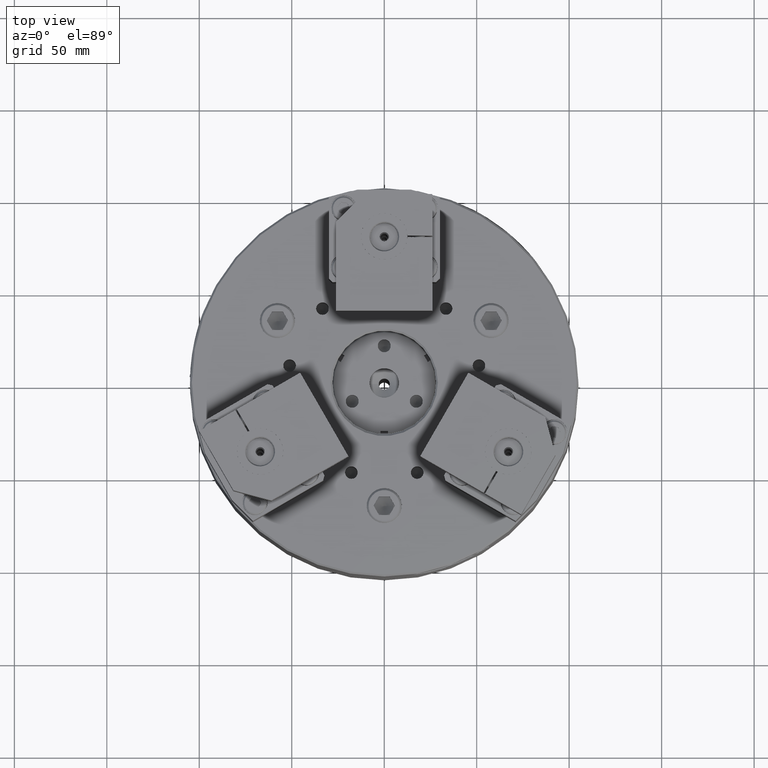
[diagram: clean part render]
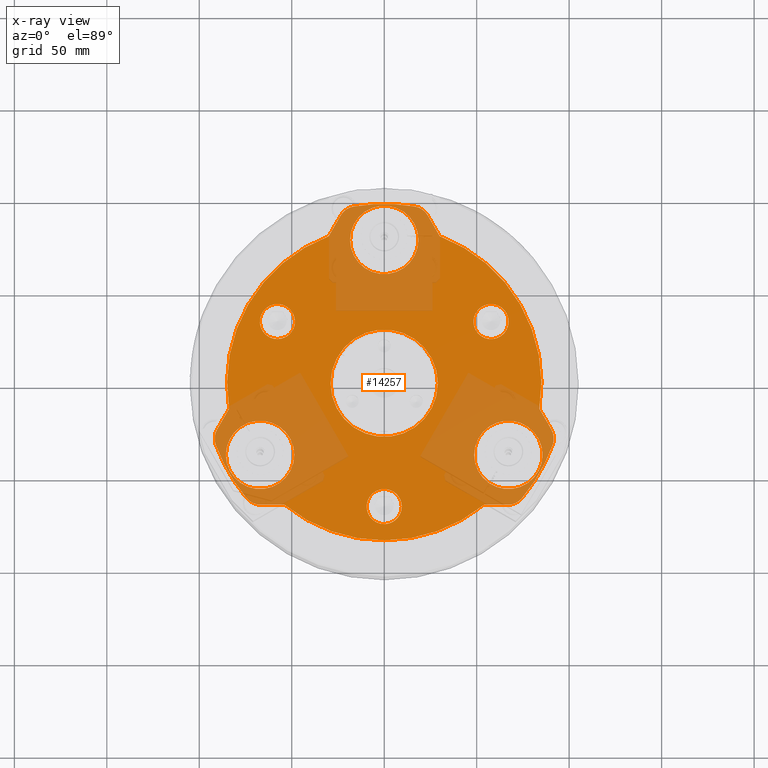
[diagram: x-ray — body ghosted, one internal face saturated and labeled with its STEP entity id]
A machine part, top view, then the same camera in x-ray: the body is ghosted and one INTERNAL B-rep face — a face not visible from any outside direction — is saturated and labeled: STEP entity #14257.
In plain terms, the highlighted planar face has unit normal (0, 0, 1).
Its self-contained STEP definition (entity closure, byte-faithful):
#113=LINE('',#22704,#953);
#116=LINE('',#22709,#956);
#123=LINE('',#22735,#963);
#126=LINE('',#22740,#966);
#133=LINE('',#22766,#973);
#136=LINE('',#22771,#976);
#953=VECTOR('',#17975,1000.);
#956=VECTOR('',#17980,1000.);
#963=VECTOR('',#18007,1000.);
#966=VECTOR('',#18012,1000.);
#973=VECTOR('',#18039,1000.);
#976=VECTOR('',#18044,1000.);
#1788=PLANE('',#15881);
#2535=CIRCLE('',#15745,9.5);
#2537=CIRCLE('',#15748,9.5);
#2539=CIRCLE('',#15751,9.5);
#2544=CIRCLE('',#15758,29.);
#2567=CIRCLE('',#15790,18.5);
#2569=CIRCLE('',#15793,18.5);
#2571=CIRCLE('',#15796,18.5);
#2598=CIRCLE('',#15848,10.);
#2600=CIRCLE('',#15851,97.);
#2602=CIRCLE('',#15854,9.99999999999999);
#2604=CIRCLE('',#15859,10.);
#2606=CIRCLE('',#15862,97.);
#2608=CIRCLE('',#15865,9.99999999999999);
#2610=CIRCLE('',#15870,10.);
#2612=CIRCLE('',#15873,97.);
#2614=CIRCLE('',#15876,9.99999999999999);
#2615=CIRCLE('',#15882,85.);
#2616=CIRCLE('',#15883,85.);
#2617=CIRCLE('',#15884,85.);
#3576=ORIENTED_EDGE('',*,*,#7085,.T.);
#3577=ORIENTED_EDGE('',*,*,#7052,.F.);
#3578=ORIENTED_EDGE('',*,*,#7039,.F.);
#3579=ORIENTED_EDGE('',*,*,#7043,.F.);
#3580=ORIENTED_EDGE('',*,*,#7046,.F.);
#3581=ORIENTED_EDGE('',*,*,#7049,.F.);
#3582=ORIENTED_EDGE('',*,*,#7086,.T.);
#3583=ORIENTED_EDGE('',*,*,#7068,.F.);
#3584=ORIENTED_EDGE('',*,*,#7055,.F.);
#3585=ORIENTED_EDGE('',*,*,#7059,.F.);
#3586=ORIENTED_EDGE('',*,*,#7062,.F.);
#3587=ORIENTED_EDGE('',*,*,#7065,.F.);
#3588=ORIENTED_EDGE('',*,*,#7087,.T.);
#3589=ORIENTED_EDGE('',*,*,#7084,.F.);
#3590=ORIENTED_EDGE('',*,*,#7071,.F.);
#3591=ORIENTED_EDGE('',*,*,#7075,.F.);
#3592=ORIENTED_EDGE('',*,*,#7078,.F.);
#3593=ORIENTED_EDGE('',*,*,#7081,.F.);
#3594=ORIENTED_EDGE('',*,*,#6984,.T.);
#3595=ORIENTED_EDGE('',*,*,#7007,.T.);
#3596=ORIENTED_EDGE('',*,*,#7009,.T.);
#3597=ORIENTED_EDGE('',*,*,#7011,.T.);
#3598=ORIENTED_EDGE('',*,*,#6979,.T.);
#3599=ORIENTED_EDGE('',*,*,#6977,.T.);
#3600=ORIENTED_EDGE('',*,*,#6975,.T.);
#6975=EDGE_CURVE('',#8769,#8769,#2535,.T.);
#6977=EDGE_CURVE('',#8771,#8771,#2537,.T.);
#6979=EDGE_CURVE('',#8773,#8773,#2539,.T.);
#6984=EDGE_CURVE('',#8778,#8778,#2544,.T.);
#7007=EDGE_CURVE('',#8801,#8801,#2567,.T.);
#7009=EDGE_CURVE('',#8803,#8803,#2569,.T.);
#7011=EDGE_CURVE('',#8805,#8805,#2571,.T.);
#7039=EDGE_CURVE('',#8845,#8846,#2598,.T.);
#7043=EDGE_CURVE('',#8848,#8845,#2600,.T.);
#7046=EDGE_CURVE('',#8850,#8848,#2602,.T.);
#7049=EDGE_CURVE('',#8851,#8850,#113,.T.);
#7052=EDGE_CURVE('',#8846,#8852,#116,.T.);
#7055=EDGE_CURVE('',#8855,#8856,#2604,.T.);
#7059=EDGE_CURVE('',#8858,#8855,#2606,.T.);
#7062=EDGE_CURVE('',#8860,#8858,#2608,.T.);
#7065=EDGE_CURVE('',#8861,#8860,#123,.T.);
#7068=EDGE_CURVE('',#8856,#8862,#126,.T.);
#7071=EDGE_CURVE('',#8865,#8866,#2610,.T.);
#7075=EDGE_CURVE('',#8868,#8865,#2612,.T.);
#7078=EDGE_CURVE('',#8870,#8868,#2614,.T.);
#7081=EDGE_CURVE('',#8871,#8870,#133,.T.);
#7084=EDGE_CURVE('',#8866,#8872,#136,.T.);
#7085=EDGE_CURVE('',#8871,#8852,#2615,.T.);
#7086=EDGE_CURVE('',#8851,#8862,#2616,.T.);
#7087=EDGE_CURVE('',#8861,#8872,#2617,.T.);
#8769=VERTEX_POINT('',#22505);
#8771=VERTEX_POINT('',#22510);
#8773=VERTEX_POINT('',#22515);
#8778=VERTEX_POINT('',#22527);
#8801=VERTEX_POINT('',#22582);
#8803=VERTEX_POINT('',#22587);
#8805=VERTEX_POINT('',#22592);
#8845=VERTEX_POINT('',#22684);
#8846=VERTEX_POINT('',#22686);
#8848=VERTEX_POINT('',#22692);
#8850=VERTEX_POINT('',#22698);
#8851=VERTEX_POINT('',#22703);
#8852=VERTEX_POINT('',#22707);
#8855=VERTEX_POINT('',#22715);
#8856=VERTEX_POINT('',#22717);
#8858=VERTEX_POINT('',#22723);
#8860=VERTEX_POINT('',#22729);
#8861=VERTEX_POINT('',#22734);
#8862=VERTEX_POINT('',#22738);
#8865=VERTEX_POINT('',#22746);
#8866=VERTEX_POINT('',#22748);
#8868=VERTEX_POINT('',#22754);
#8870=VERTEX_POINT('',#22760);
#8871=VERTEX_POINT('',#22765);
#8872=VERTEX_POINT('',#22769);
#10413=EDGE_LOOP('',(#3576,#3577,#3578,#3579,#3580,#3581,#3582,#3583,#3584,
#3585,#3586,#3587,#3588,#3589,#3590,#3591,#3592,#3593));
#10414=EDGE_LOOP('',(#3594));
#10415=EDGE_LOOP('',(#3595));
#10416=EDGE_LOOP('',(#3596));
#10417=EDGE_LOOP('',(#3597));
#10418=EDGE_LOOP('',(#3598));
#10419=EDGE_LOOP('',(#3599));
#10420=EDGE_LOOP('',(#3600));
#12209=FACE_BOUND('',#10413,.T.);
#12210=FACE_BOUND('',#10414,.T.);
#12211=FACE_BOUND('',#10415,.T.);
#12212=FACE_BOUND('',#10416,.T.);
#12213=FACE_BOUND('',#10417,.T.);
#12214=FACE_BOUND('',#10418,.T.);
#12215=FACE_BOUND('',#10419,.T.);
#12216=FACE_BOUND('',#10420,.T.);
#14257=ADVANCED_FACE('',(#12209,#12210,#12211,#12212,#12213,#12214,#12215,
#12216),#1788,.F.);
#15745=AXIS2_PLACEMENT_3D('',#22504,#17747,#17748);
#15748=AXIS2_PLACEMENT_3D('',#22509,#17753,#17754);
#15751=AXIS2_PLACEMENT_3D('',#22514,#17759,#17760);
#15758=AXIS2_PLACEMENT_3D('',#22526,#17773,#17774);
#15790=AXIS2_PLACEMENT_3D('',#22581,#17837,#17838);
#15793=AXIS2_PLACEMENT_3D('',#22586,#17843,#17844);
#15796=AXIS2_PLACEMENT_3D('',#22591,#17849,#17850);
#15848=AXIS2_PLACEMENT_3D('',#22685,#17954,#17955);
#15851=AXIS2_PLACEMENT_3D('',#22693,#17962,#17963);
#15854=AXIS2_PLACEMENT_3D('',#22699,#17969,#17970);
#15859=AXIS2_PLACEMENT_3D('',#22716,#17986,#17987);
#15862=AXIS2_PLACEMENT_3D('',#22724,#17994,#17995);
#15865=AXIS2_PLACEMENT_3D('',#22730,#18001,#18002);
#15870=AXIS2_PLACEMENT_3D('',#22747,#18018,#18019);
#15873=AXIS2_PLACEMENT_3D('',#22755,#18026,#18027);
#15876=AXIS2_PLACEMENT_3D('',#22761,#18033,#18034);
#15881=AXIS2_PLACEMENT_3D('',#22774,#18049,#18050);
#15882=AXIS2_PLACEMENT_3D('',#22775,#18051,#18052);
#15883=AXIS2_PLACEMENT_3D('',#22776,#18053,#18054);
#15884=AXIS2_PLACEMENT_3D('',#22777,#18055,#18056);
#17747=DIRECTION('',(0.,0.,1.));
#17748=DIRECTION('',(1.,0.,0.));
#17753=DIRECTION('',(0.,0.,1.));
#17754=DIRECTION('',(1.,0.,0.));
#17759=DIRECTION('',(0.,0.,1.));
#17760=DIRECTION('',(1.,0.,0.));
#17773=DIRECTION('',(0.,0.,1.));
#17774=DIRECTION('',(1.,0.,0.));
#17837=DIRECTION('',(0.,0.,1.));
#17838=DIRECTION('',(1.,0.,0.));
#17843=DIRECTION('',(0.,0.,1.));
#17844=DIRECTION('',(1.,0.,0.));
#17849=DIRECTION('',(0.,0.,1.));
#17850=DIRECTION('',(1.,0.,0.));
#17954=DIRECTION('',(0.,0.,1.));
#17955=DIRECTION('',(-0.5,-0.866025403784439,0.));
#17962=DIRECTION('',(0.,0.,1.));
#17963=DIRECTION('',(-0.5,-0.866025403784438,0.));
#17969=DIRECTION('',(0.,0.,1.));
#17970=DIRECTION('',(-0.5,-0.866025403784438,0.));
#17975=DIRECTION('',(1.,-1.66533453693773E-16,0.));
#17980=DIRECTION('',(-0.5,0.866025403784439,0.));
#17986=DIRECTION('',(0.,0.,1.));
#17987=DIRECTION('',(-0.5,0.866025403784439,0.));
#17994=DIRECTION('',(0.,0.,1.));
#17995=DIRECTION('',(-0.5,0.866025403784439,0.));
#18001=DIRECTION('',(0.,0.,1.));
#18002=DIRECTION('',(-0.5,0.866025403784439,0.));
#18007=DIRECTION('',(-0.5,-0.866025403784439,0.));
#18012=DIRECTION('',(1.,5.55111512312578E-17,0.));
#18018=DIRECTION('',(0.,0.,1.));
#18019=DIRECTION('',(1.,0.,0.));
#18026=DIRECTION('',(0.,0.,1.));
#18027=DIRECTION('',(1.,0.,0.));
#18033=DIRECTION('',(0.,0.,1.));
#18034=DIRECTION('',(1.,0.,0.));
#18039=DIRECTION('',(-0.5,0.866025403784438,0.));
#18044=DIRECTION('',(-0.5,-0.866025403784439,0.));
#18049=DIRECTION('',(0.,0.,1.));
#18050=DIRECTION('',(1.,0.,0.));
#18051=DIRECTION('',(0.,0.,-1.));
#18052=DIRECTION('',(-1.,0.,0.));
#18053=DIRECTION('',(0.,0.,-1.));
#18054=DIRECTION('',(-1.,0.,0.));
#18055=DIRECTION('',(0.,0.,-1.));
#18056=DIRECTION('',(-1.,0.,0.));
#22504=CARTESIAN_POINT('',(-4.85722573273506E-14,-66.7,43.));
#22505=CARTESIAN_POINT('',(9.49999999999995,-66.7,43.));
#22509=CARTESIAN_POINT('',(-57.7638944324221,33.35,43.));
#22510=CARTESIAN_POINT('',(-48.2638944324221,33.35,43.));
#22514=CARTESIAN_POINT('',(57.7638944324221,33.35,43.));
#22515=CARTESIAN_POINT('',(67.2638944324221,33.35,43.));
#22526=CARTESIAN_POINT('',(0.,0.,43.));
#22527=CARTESIAN_POINT('',(29.,0.,43.));
#22581=CARTESIAN_POINT('',(67.116968793294,-38.75,43.));
#22582=CARTESIAN_POINT('',(85.616968793294,-38.75,43.));
#22586=CARTESIAN_POINT('',(-67.116968793294,-38.75,43.));
#22587=CARTESIAN_POINT('',(-48.616968793294,-38.75,43.));
#22591=CARTESIAN_POINT('',(0.,77.5,43.));
#22592=CARTESIAN_POINT('',(18.5,77.5,43.));
#22684=CARTESIAN_POINT('',(91.0619390197772,-33.4174095638543,43.));
#22685=CARTESIAN_POINT('',(81.6741102548517,-29.9723157943848,43.));
#22686=CARTESIAN_POINT('',(90.3343642926961,-24.9723157943848,43.));
#22692=CARTESIAN_POINT('',(74.4712951208555,-62.1532477270694,43.));
#22693=CARTESIAN_POINT('',(0.,0.,43.));
#22698=CARTESIAN_POINT('',(66.7938420156126,-65.7456964150003,43.));
#22699=CARTESIAN_POINT('',(66.7938420156126,-55.7456964150004,43.));
#22703=CARTESIAN_POINT('',(53.8748865697795,-65.7456964150004,43.));
#22704=CARTESIAN_POINT('',(31.3237367794952,-65.7456964150003,43.));
#22707=CARTESIAN_POINT('',(83.8748865697795,-13.7841721879341,43.));
#22709=CARTESIAN_POINT('',(90.3343642926961,-24.9723157943848,43.));
#22715=CARTESIAN_POINT('',(-74.4712951208555,-62.1532477270693,43.));
#22716=CARTESIAN_POINT('',(-66.7938420156127,-55.7456964150003,43.));
#22717=CARTESIAN_POINT('',(-66.7938420156127,-65.7456964150003,43.));
#22723=CARTESIAN_POINT('',(-91.0619390197772,-33.4174095638543,43.));
#22724=CARTESIAN_POINT('',(0.,0.,43.));
#22729=CARTESIAN_POINT('',(-90.3343642926961,-24.9723157943848,43.));
#22730=CARTESIAN_POINT('',(-81.6741102548517,-29.9723157943848,43.));
#22734=CARTESIAN_POINT('',(-83.8748865697796,-13.784172187934,43.));
#22735=CARTESIAN_POINT('',(-72.5993116746374,5.74569641500033,43.));
#22738=CARTESIAN_POINT('',(-53.8748865697796,-65.7456964150003,43.));
#22740=CARTESIAN_POINT('',(-66.7938420156127,-65.7456964150003,43.));
#22746=CARTESIAN_POINT('',(-16.5906438989217,95.5706572909236,43.));
#22747=CARTESIAN_POINT('',(-14.8802682392391,85.7180122093851,43.));
#22748=CARTESIAN_POINT('',(-23.5405222770835,90.7180122093851,43.));
#22754=CARTESIAN_POINT('',(16.5906438989217,95.5706572909236,43.));
#22755=CARTESIAN_POINT('',(0.,0.,43.));
#22760=CARTESIAN_POINT('',(23.5405222770834,90.7180122093851,43.));
#22761=CARTESIAN_POINT('',(14.8802682392391,85.7180122093851,43.));
#22765=CARTESIAN_POINT('',(30.,79.5298686029343,43.));
#22766=CARTESIAN_POINT('',(41.2755748951422,60.,43.));
#22769=CARTESIAN_POINT('',(-30.,79.5298686029343,43.));
#22771=CARTESIAN_POINT('',(-23.5405222770835,90.7180122093851,43.));
#22774=CARTESIAN_POINT('',(0.,85.,43.));
#22775=CARTESIAN_POINT('',(0.,0.,43.));
#22776=CARTESIAN_POINT('',(0.,0.,43.));
#22777=CARTESIAN_POINT('',(0.,0.,43.));